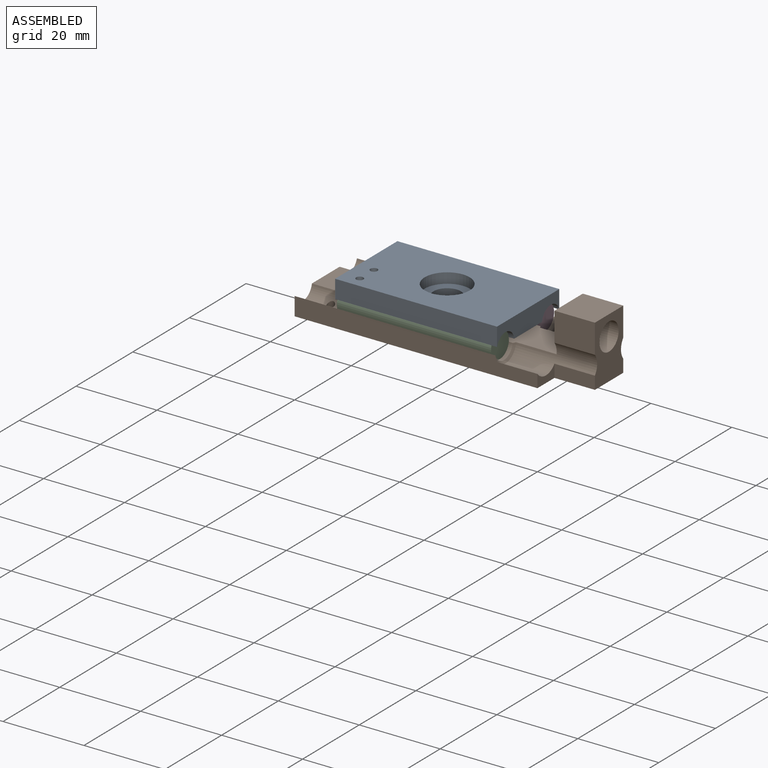
[diagram: assembled view]
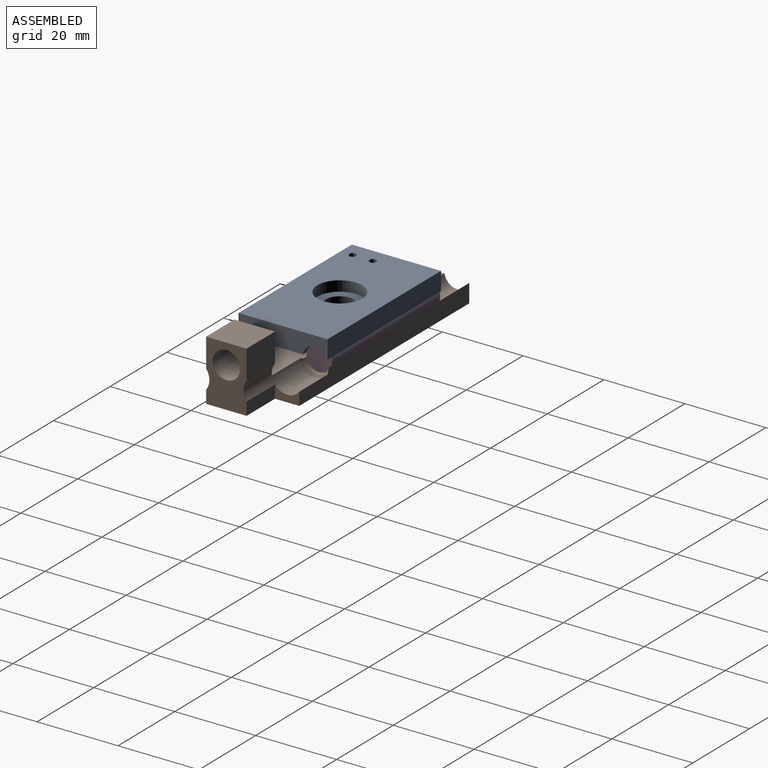
[diagram: assembled view, second angle]
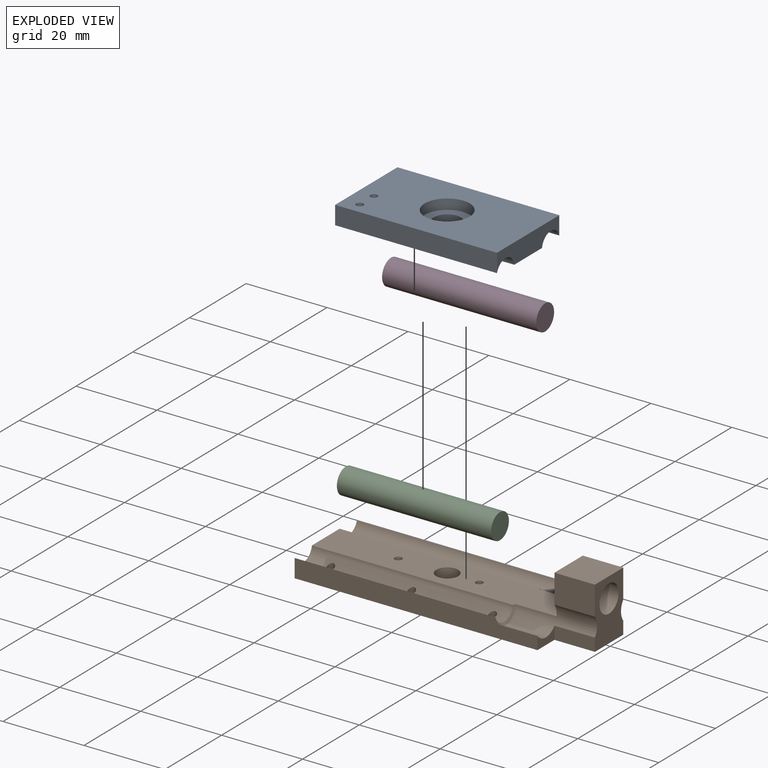
[diagram: exploded view]
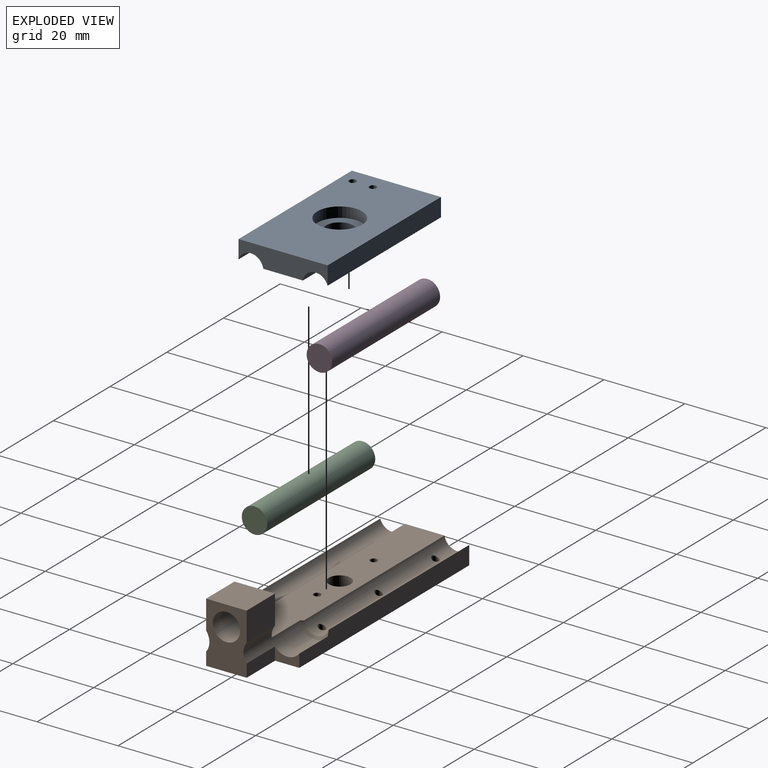
[diagram: exploded view, second angle]
ASSEMBLY  parts=4 mates=3
PART A: 13 faces, bbox 40x22x5 mm
  f0: cylinder r=3.15mm len=40mm, axis (-1,0,0), area 334.2mm2, adj f1,f3,f5,f6,f11
  f1: plane 40x9.78mm, normal (0,0,-1), area 352.9mm2, adj f0,f5,f6,f7,f10,f12
  f2: plane 40x4.54mm, normal (0,1,0), area 181.6mm2, adj f4,f5,f6,f10
  f3: plane 40x4.54mm, normal (0,-1,0), area 181.6mm2, adj f0,f4,f5,f6
  f4: plane 40x22mm, normal (0,0,1), area 778mm2, adj f2,f3,f5,f6,f9,f11,f12
  f5: plane 22x5mm, normal (1,0,0), area 85.2mm2, adj f0,f1,f2,f3,f4,f10
  f6: plane 22x5mm, normal (-1,0,0), area 85.2mm2, adj f0,f1,f2,f3,f4,f10
  f7: cylinder r=3.38mm len=6.76mm, axis (0,0,1), area 52.2mm2, adj f1,f8
  f8: plane 11.11x11.11mm, normal (0,0,1), area 61.1mm2, adj f7,f9
  f9: cylinder r=5.56mm len=11.11mm, axis (0,0,1), area 88.7mm2, adj f4,f8
  f10: cylinder r=3.15mm len=40mm, axis (-1,0,0), area 336.7mm2, adj f1,f2,f5,f6
  f11: cylinder r=0.89mm len=2.48mm, axis (0,0,1), area 13.5mm2, adj f0,f4
  f12: cylinder r=0.89mm len=5mm, axis (0,0,1), area 27.9mm2, adj f1,f4
PART B: 31 faces, bbox 70.2x23.4x15.2 mm
  f0: plane 60.01x9.79mm, normal (0,0,1), area 543mm2, adj f2,f6,f10,f14,f19,f22,f25,f26
  f1: plane 15x10mm, normal (1,0,0), area 109.1mm2, adj f4,f5,f8,f9,f13,f15,f16,f27
  f2: cylinder r=3.15mm len=49.61mm, axis (-1,0,0), area 409.5mm2, adj f0,f3,f10,f17,f20,f23,f30
  f3: plane 60.17x4.71mm, normal (0,-1,0), area 258.3mm2, adj f2,f10,f11,f13,f29,f30
  f4: plane 10x7.17mm, normal (0,-1,0), area 71.7mm2, adj f1,f14,f15,f29
  f5: plane 10x3.17mm, normal (0,-1,0), area 31.7mm2, adj f1,f11,f13,f29
  f6: cylinder r=3.15mm len=49.61mm, axis (-1,0,0), area 409.5mm2, adj f0,f7,f10,f18,f21,f24,f28
  f7: plane 60.17x4.71mm, normal (0,1,0), area 258.3mm2, adj f6,f10,f12,f13,f27,f28
  f8: plane 10x7.17mm, normal (0,1,0), area 71.7mm2, adj f1,f14,f15,f27
  f9: plane 10x3.17mm, normal (0,1,0), area 31.7mm2, adj f1,f12,f13,f27
  f10: plane 22x5mm, normal (-1,0,0), area 85.2mm2, adj f0,f2,f3,f6,f7,f13
  f11: plane 6x3.17mm, normal (1,0,0), area 12.9mm2, adj f3,f5,f13,f29
  f12: plane 6x3.17mm, normal (1,0,0), area 12.9mm2, adj f7,f9,f13,f27
  f13: plane 70x22mm, normal (0,0,-1), area 1374.7mm2, adj f1,f3,f5,f7,f9,f10,f11,f12
  f14: plane 10x10mm, normal (-1,0,0), area 60.8mm2, adj f0,f4,f8,f15,f16,f27,f29
  f15: plane 10x10mm, normal (0,0,1), area 100mm2, adj f1,f4,f8,f14
  f16: cylinder r=3.38mm len=10mm, axis (1,0,0), area 212.3mm2, adj f1,f14
  f17: cylinder r=0.89mm len=3.08mm, axis (0,0,-1), area 14.7mm2, adj f2,f13
  f18: cylinder r=0.89mm len=3.08mm, axis (0,0,-1), area 14.7mm2, adj f6,f13
  f19: cylinder r=0.89mm len=5mm, axis (0,0,-1), area 27.9mm2, adj f0,f13
  f20: cylinder r=0.89mm len=3.08mm, axis (0,0,-1), area 14.7mm2, adj f2,f13
  f21: cylinder r=0.89mm len=3.08mm, axis (0,0,-1), area 14.7mm2, adj f6,f13
  f22: cylinder r=0.89mm len=5mm, axis (0,0,-1), area 27.9mm2, adj f0,f13
  f23: cylinder r=0.89mm len=3.08mm, axis (0,0,-1), area 14.7mm2, adj f2,f13
  f24: cylinder r=0.89mm len=3.08mm, axis (0,0,-1), area 14.7mm2, adj f6,f13
  f25: cylinder r=0.89mm len=5mm, axis (0,0,-1), area 27.9mm2, adj f0,f13
  f26: cylinder r=2.71mm len=5.41mm, axis (0,0,1), area 85mm2, adj f0,f13
  f27: cylinder r=3.8mm len=20mm, axis (1,0,0), area 139.5mm2, adj f0,f1,f7,f8,f9,f12,f14,f28
  f28: cone r=0mm half-angle=59deg, axis (1,0,0), area 6.6mm2, adj f0,f6,f7,f27
  f29: cylinder r=3.8mm len=20mm, axis (1,0,0), area 139.5mm2, adj f0,f1,f3,f4,f5,f11,f14,f30
  f30: cone r=0mm half-angle=59deg, axis (1,0,0), area 6.6mm2, adj f0,f2,f3,f29
PART C: 3 faces, bbox 38.1x6.3x6.3 mm
  f0: cylinder r=3.15mm len=38.1mm, axis (-1,0,0), area 754.1mm2, adj f1,f2
  f1: plane 6.3x6.3mm, normal (1,0,0), area 31.2mm2, adj f0
  f2: plane 6.3x6.3mm, normal (-1,0,0), area 31.2mm2, adj f0
PART D: 3 faces, bbox 38.1x6.3x6.3 mm
  f0: cylinder r=3.15mm len=38.1mm, axis (-1,0,0), area 754.1mm2, adj f1,f2
  f1: plane 6.3x6.3mm, normal (1,0,0), area 31.2mm2, adj f0
  f2: plane 6.3x6.3mm, normal (-1,0,0), area 31.2mm2, adj f0
PLACE A t=(-19.61,-62.32,-51.65)mm
PLACE B t=(0.39,-0.95,0.84)mm
PLACE C t=(-19.06,36.58,-32.11)mm
PLACE D t=(-19.09,53.38,-8.25)mm
MATE slider A.f7 <-> B.f26  axis (0,0,-1) through (0.39,-0.95,6.9)mm
MATE slider C.f0 <-> B.f2  axis (-1,0,0) through (-19.06,-8.95,6.34)mm
MATE slider D.f0 <-> B.f6  axis (-1,0,0) through (-19.09,7.05,6.34)mm
